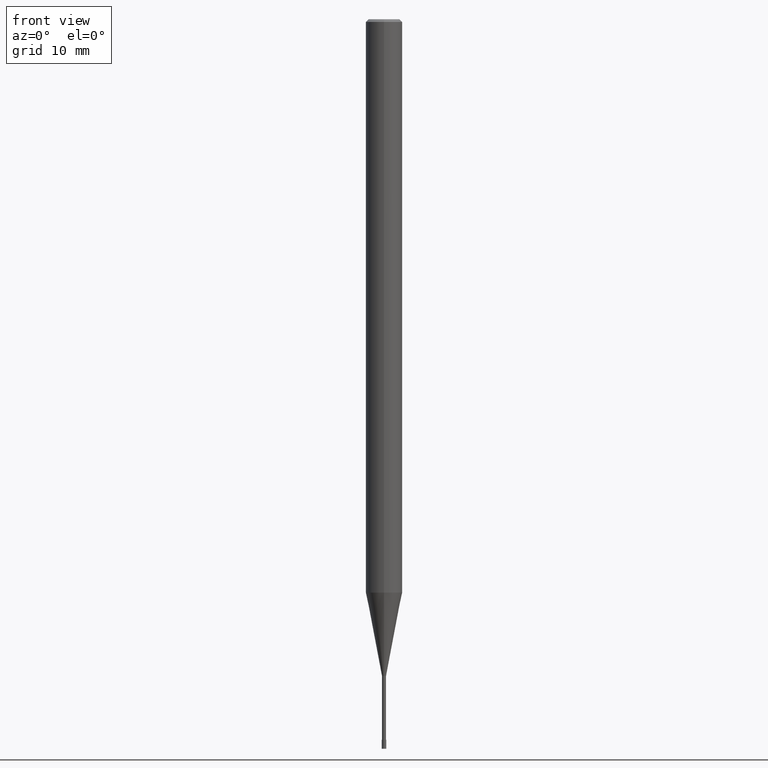
[diagram: clean part render]
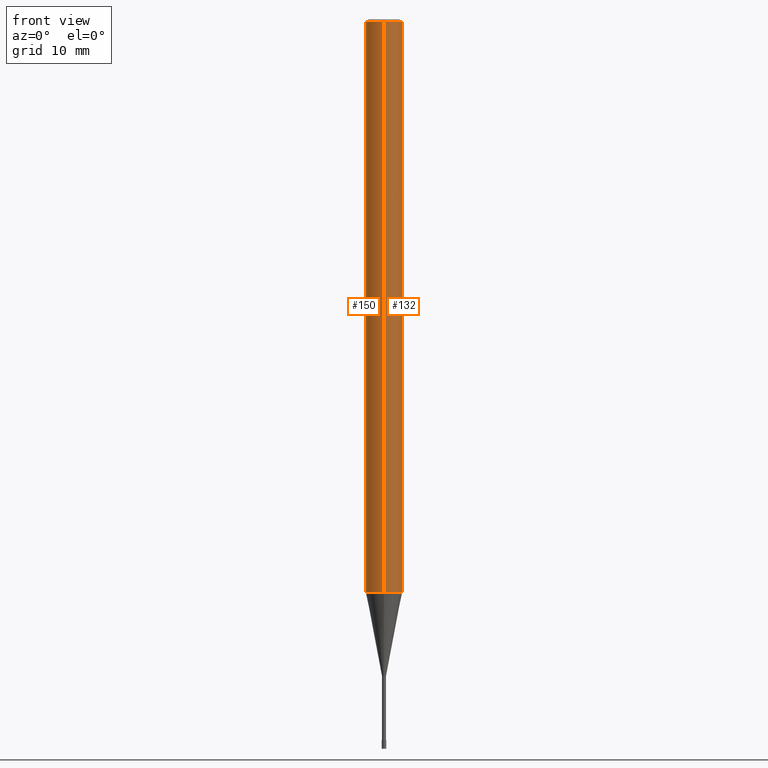
[diagram: same view with one multi-face feature highlighted, each face labeled with its STEP entity id]
A machine part, front view. The highlighted faces form ONE feature: a constant-radius fillet chain: 2 tangent blend faces with common blend radius 2 mm. The faces share edges in the B-rep.
Their STEP definitions:
[1] entity #132 (Cylinder):
#118=EDGE_CURVE('',#148,#202,#257,.T.);
#124=EDGE_CURVE('',#186,#202,#264,.T.);
#132=ADVANCED_FACE('',(#272),#273,.T.);
#148=VERTEX_POINT('',#289);
#170=EDGE_CURVE('',#148,#182,#316,.T.);
#182=VERTEX_POINT('',#330);
#186=VERTEX_POINT('',#335);
#202=VERTEX_POINT('',#355);
#206=EDGE_CURVE('',#182,#186,#359,.T.);
#257=CIRCLE('',#411,2.0);
#264=LINE('',#421,#422);
#272=FACE_OUTER_BOUND('',#435,.T.);
#273=CYLINDRICAL_SURFACE('',#436,2.0);
#289=CARTESIAN_POINT('',(0.0,2.0,-0.299999999999997));
#316=LINE('',#490,#491);
#330=CARTESIAN_POINT('',(0.0,2.0,-62.868));
#335=CARTESIAN_POINT('',(2.44921270764475E-016,-2.0,-62.868));
#355=CARTESIAN_POINT('',(2.44921270764475E-016,-2.0,-0.299999999999997));
#359=CIRCLE('',#537,2.0);
#411=AXIS2_PLACEMENT_3D('',#576,#577,#578);
#421=CARTESIAN_POINT('',(2.44921270764475E-016,-2.0,-31.584));
#422=VECTOR('',#586,1.0);
#435=EDGE_LOOP('',(#593,#594,#595,#596));
#436=AXIS2_PLACEMENT_3D('',#597,#598,#599);
#490=CARTESIAN_POINT('',(-2.44921270764475E-016,2.0,-31.584));
#491=VECTOR('',#649,1.0);
#537=AXIS2_PLACEMENT_3D('',#708,#709,#710);
#576=CARTESIAN_POINT('',(0.0,0.0,-0.299999999999997));
#577=DIRECTION('',(0.0,0.0,-1.0));
#578=DIRECTION('',(0.0,1.0,0.0));
#586=DIRECTION('',(-0.0,-0.0,1.0));
#593=ORIENTED_EDGE('',*,*,#170,.F.);
#594=ORIENTED_EDGE('',*,*,#118,.T.);
#595=ORIENTED_EDGE('',*,*,#124,.F.);
#596=ORIENTED_EDGE('',*,*,#206,.F.);
#597=CARTESIAN_POINT('',(0.0,0.0,-31.584));
#598=DIRECTION('',(-0.0,-0.0,1.0));
#599=DIRECTION('',(0.0,1.0,0.0));
#649=DIRECTION('',(0.0,0.0,-1.0));
#708=CARTESIAN_POINT('',(0.0,0.0,-62.868));
#709=DIRECTION('',(0.0,0.0,-1.0));
#710=DIRECTION('',(0.0,1.0,0.0));
[2] entity #150 (Cylinder):
#124=EDGE_CURVE('',#186,#202,#264,.T.);
#128=EDGE_CURVE('',#186,#182,#268,.T.);
#148=VERTEX_POINT('',#289);
#150=ADVANCED_FACE('',(#291),#292,.T.);
#170=EDGE_CURVE('',#148,#182,#316,.T.);
#182=VERTEX_POINT('',#330);
#186=VERTEX_POINT('',#335);
#202=VERTEX_POINT('',#355);
#208=EDGE_CURVE('',#202,#148,#361,.T.);
#264=LINE('',#421,#422);
#268=CIRCLE('',#429,2.0);
#289=CARTESIAN_POINT('',(0.0,2.0,-0.299999999999997));
#291=FACE_OUTER_BOUND('',#458,.T.);
#292=CYLINDRICAL_SURFACE('',#459,2.0);
#316=LINE('',#490,#491);
#330=CARTESIAN_POINT('',(0.0,2.0,-62.868));
#335=CARTESIAN_POINT('',(2.44921270764475E-016,-2.0,-62.868));
#355=CARTESIAN_POINT('',(2.44921270764475E-016,-2.0,-0.299999999999997));
#361=CIRCLE('',#540,2.0);
#421=CARTESIAN_POINT('',(2.44921270764475E-016,-2.0,-31.584));
#422=VECTOR('',#586,1.0);
#429=AXIS2_PLACEMENT_3D('',#588,#589,#590);
#458=EDGE_LOOP('',(#612,#613,#614,#615));
#459=AXIS2_PLACEMENT_3D('',#616,#617,#618);
#490=CARTESIAN_POINT('',(-2.44921270764475E-016,2.0,-31.584));
#491=VECTOR('',#649,1.0);
#540=AXIS2_PLACEMENT_3D('',#711,#712,#713);
#586=DIRECTION('',(-0.0,-0.0,1.0));
#588=CARTESIAN_POINT('',(0.0,0.0,-62.868));
#589=DIRECTION('',(0.0,0.0,-1.0));
#590=DIRECTION('',(0.0,1.0,0.0));
#612=ORIENTED_EDGE('',*,*,#170,.T.);
#613=ORIENTED_EDGE('',*,*,#128,.F.);
#614=ORIENTED_EDGE('',*,*,#124,.T.);
#615=ORIENTED_EDGE('',*,*,#208,.T.);
#616=CARTESIAN_POINT('',(0.0,0.0,-31.584));
#617=DIRECTION('',(-0.0,-0.0,1.0));
#618=DIRECTION('',(0.0,1.0,0.0));
#649=DIRECTION('',(0.0,0.0,-1.0));
#711=CARTESIAN_POINT('',(0.0,0.0,-0.299999999999997));
#712=DIRECTION('',(0.0,0.0,-1.0));
#713=DIRECTION('',(0.0,1.0,0.0));